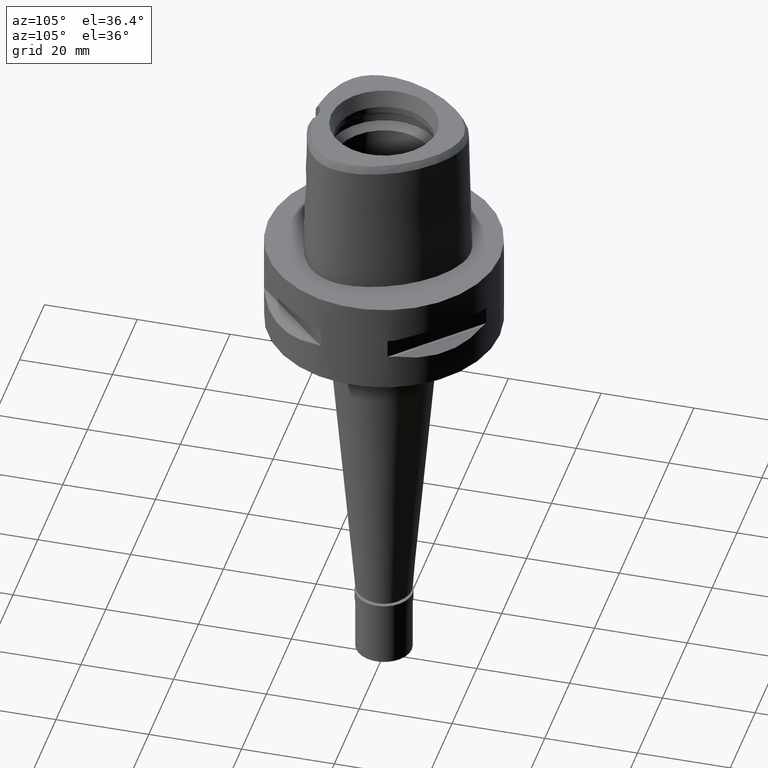
[diagram: clean part render]
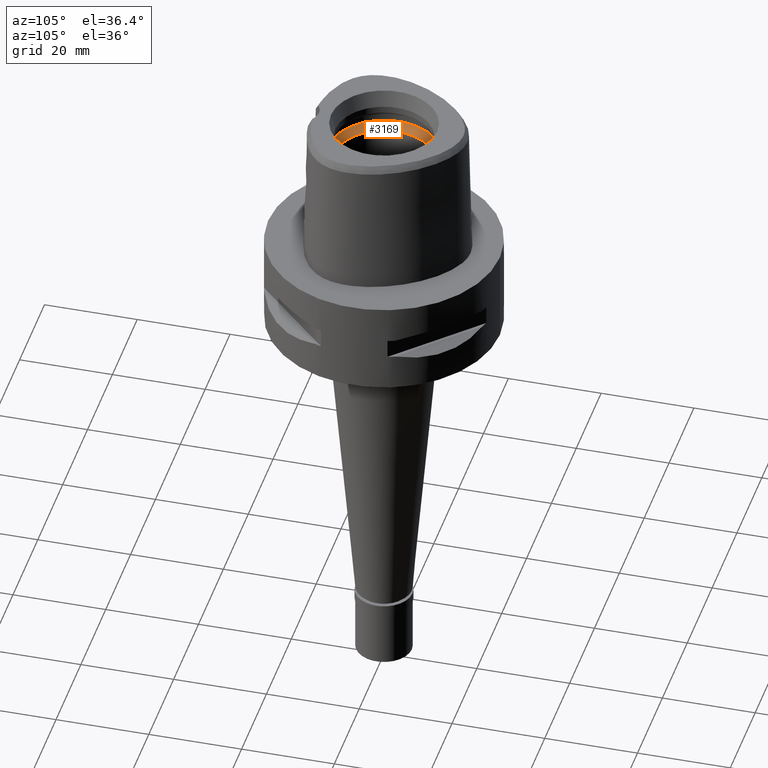
[diagram: same view with one face highlighted and labeled with its STEP entity id]
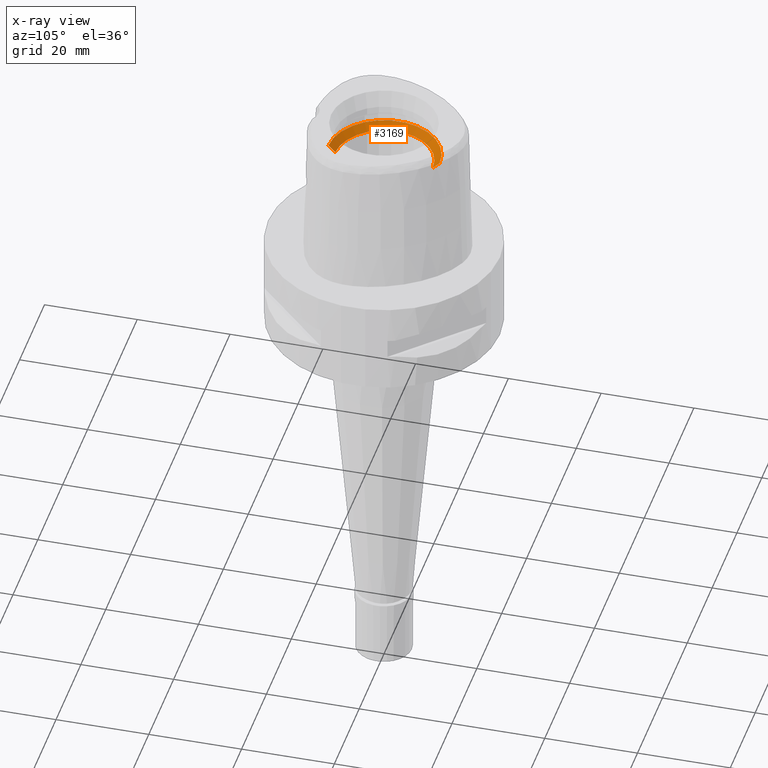
[diagram: x-ray of the same camera — body ghosted, the highlighted face saturated]
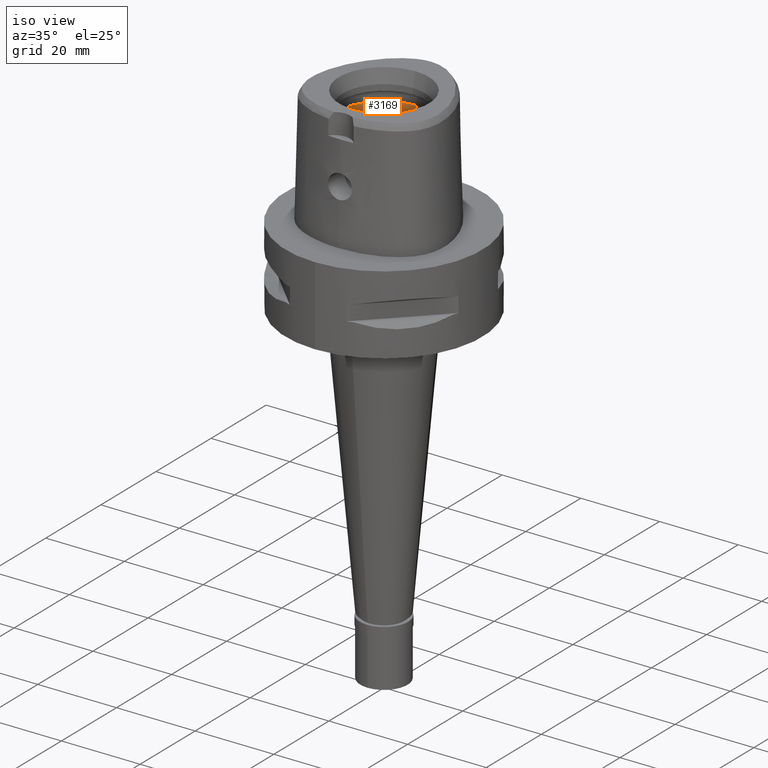
[diagram: same view with one face highlighted and labeled with its STEP entity id]
A machine part, auxiliary view. The second image highlights one B-rep face of the part: STEP entity #3169.
The next image is the same camera in x-ray: the body ghosted, the highlighted face saturated — about 0% of this face is hidden behind the body in this view.
A second angle (iso view) of the same face is appended — the face is thin or edge-on in the first view.
In plain terms, the highlighted conical surface has half-angle 45 deg.
Its self-contained STEP definition (entity closure, byte-faithful):
#208 = DIRECTION ( 'NONE',  ( 0.0000000000000000000, -0.7071067811865474617, -0.7071067811865474617 ) ) ;
#350 = CARTESIAN_POINT ( 'NONE',  ( 0.0000000000000000000, 1.483670516304999789E-14, 20.40089161527999906 ) ) ;
#367 = LINE ( 'NONE', #3415, #1972 ) ;
#519 = CARTESIAN_POINT ( 'NONE',  ( 0.0000000000000000000, 1.483670516304999789E-14, 21.90089161527999906 ) ) ;
#645 = AXIS2_PLACEMENT_3D ( 'NONE', #350, #3237, #2879 ) ;
#852 = CARTESIAN_POINT ( 'NONE',  ( 0.0000000000000000000, 12.00000000000000000, 21.90089161527999906 ) ) ;
#876 = EDGE_LOOP ( 'NONE', ( #1490, #3238, #3252, #3446 ) ) ;
#919 = EDGE_CURVE ( 'NONE', #1072, #3420, #2459, .T. ) ;
#1072 = VERTEX_POINT ( 'NONE', #852 ) ;
#1146 = CARTESIAN_POINT ( 'NONE',  ( 0.0000000000000000000, 10.50000000000000000, 20.40089161527999906 ) ) ;
#1490 = ORIENTED_EDGE ( 'NONE', *, *, #3019, .F. ) ;
#1494 = AXIS2_PLACEMENT_3D ( 'NONE', #3278, #4703, #2495 ) ;
#1578 = VECTOR ( 'NONE', #208, 1000.000000000000114 ) ;
#1972 = VECTOR ( 'NONE', #4459, 1000.000000000000114 ) ;
#2009 = DIRECTION ( 'NONE',  ( 0.0000000000000000000, -1.000000000000000000, 0.0000000000000000000 ) ) ;
#2351 = AXIS2_PLACEMENT_3D ( 'NONE', #519, #3155, #2009 ) ;
#2459 = LINE ( 'NONE', #4238, #1578 ) ;
#2495 = DIRECTION ( 'NONE',  ( 0.0000000000000000000, 1.000000000000000000, 0.0000000000000000000 ) ) ;
#2879 = DIRECTION ( 'NONE',  ( 0.0000000000000000000, 1.000000000000000000, 0.0000000000000000000 ) ) ;
#2981 = CIRCLE ( 'NONE', #645, 10.50000000000000000 ) ;
#3019 = EDGE_CURVE ( 'NONE', #3420, #3093, #2981, .T. ) ;
#3023 = CARTESIAN_POINT ( 'NONE',  ( 0.0000000000000000000, -12.00000000000000000, 21.90089161527999906 ) ) ;
#3093 = VERTEX_POINT ( 'NONE', #4341 ) ;
#3155 = DIRECTION ( 'NONE',  ( 0.0000000000000000000, 0.0000000000000000000, -1.000000000000000000 ) ) ;
#3169 = ADVANCED_FACE ( 'NONE', ( #3255 ), #3224, .F. ) ;
#3224 = CONICAL_SURFACE ( 'NONE', #1494, 11.25000000000000000, 0.7853981633972997312 ) ;
#3237 = DIRECTION ( 'NONE',  ( 0.0000000000000000000, 0.0000000000000000000, 1.000000000000000000 ) ) ;
#3238 = ORIENTED_EDGE ( 'NONE', *, *, #919, .F. ) ;
#3252 = ORIENTED_EDGE ( 'NONE', *, *, #4004, .F. ) ;
#3255 = FACE_OUTER_BOUND ( 'NONE', #876, .T. ) ;
#3278 = CARTESIAN_POINT ( 'NONE',  ( 0.0000000000000000000, 1.483670516304999789E-14, 21.15089161527999906 ) ) ;
#3352 = CIRCLE ( 'NONE', #2351, 12.00000000000000000 ) ;
#3415 = CARTESIAN_POINT ( 'NONE',  ( 0.0000000000000000000, -12.00000000000000000, 21.90089161527999906 ) ) ;
#3420 = VERTEX_POINT ( 'NONE', #1146 ) ;
#3446 = ORIENTED_EDGE ( 'NONE', *, *, #3747, .T. ) ;
#3713 = VERTEX_POINT ( 'NONE', #3023 ) ;
#3747 = EDGE_CURVE ( 'NONE', #3713, #3093, #367, .T. ) ;
#4004 = EDGE_CURVE ( 'NONE', #3713, #1072, #3352, .T. ) ;
#4238 = CARTESIAN_POINT ( 'NONE',  ( 0.0000000000000000000, 12.00000000000000000, 21.90089161527999906 ) ) ;
#4341 = CARTESIAN_POINT ( 'NONE',  ( 0.0000000000000000000, -10.50000000000000000, 20.40089161527999906 ) ) ;
#4459 = DIRECTION ( 'NONE',  ( 0.0000000000000000000, 0.7071067811865474617, -0.7071067811865474617 ) ) ;
#4703 = DIRECTION ( 'NONE',  ( 0.0000000000000000000, 0.0000000000000000000, 1.000000000000000000 ) ) ;